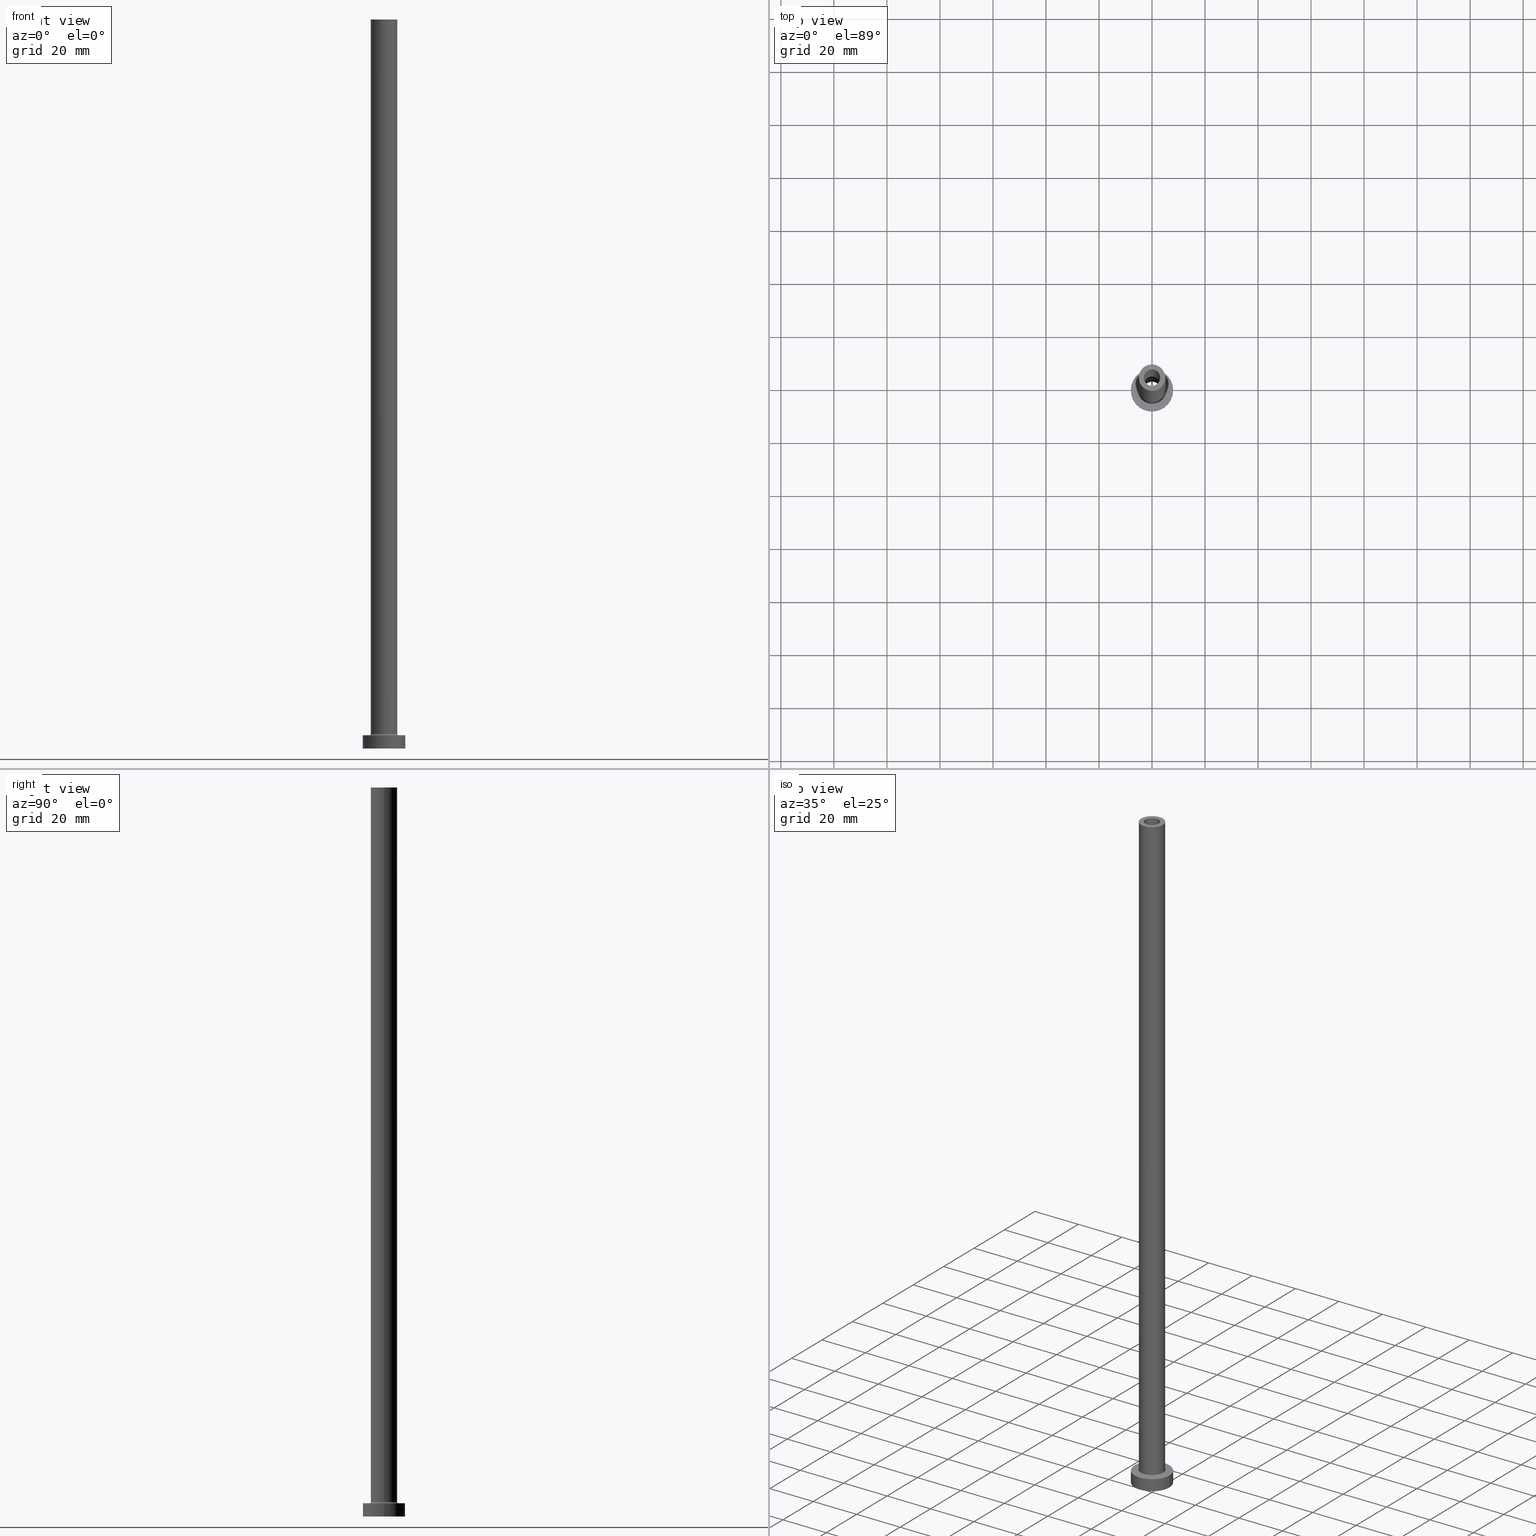
[diagram: canonical four-view strip — front | top / right | iso, engineering-drawing reading convention]
A machine part, canonical four-view strip (front | top / right | iso — engineering-drawing reading convention). The complete STEP part file that produces these views, byte-faithful:
ISO-10303-21;
HEADER;
FILE_DESCRIPTION (( 'STEP AP203' ),
    '1' );
FILE_NAME ('e5fe.STEP',
    '2023-02-13T14:31:15',
    ( '' ),
    ( '' ),
    'SwSTEP 2.0',
    'SolidWorks 2019',
    '' );
FILE_SCHEMA (( 'CONFIG_CONTROL_DESIGN' ));
ENDSEC;

DATA;
#1 = DIRECTION ( 'NONE',  ( 1.000000000000000000, 0.000000000000000000, 0.000000000000000000 ) ) ;
#2 = CARTESIAN_POINT ( 'NONE',  ( 0.000000000000000000, 0.000000000000000000, 0.000000000000000000 ) ) ;
#3 = DIRECTION ( 'NONE',  ( 1.000000000000000000, 0.000000000000000000, 0.000000000000000000 ) ) ;
#4 = EDGE_CURVE ( 'NONE', #212, #388, #419, .T. ) ;
#5 = CALENDAR_DATE ( 2023, 13, 2 ) ;
#6 = AXIS2_PLACEMENT_3D ( 'NONE', #328, #151, #412 ) ;
#7 = AXIS2_PLACEMENT_3D ( 'NONE', #179, #403, #78 ) ;
#8 = CARTESIAN_POINT ( 'NONE',  ( -5.000000000000000000, 0.000000000000000000, 275.0000000000000000 ) ) ;
#9 = EDGE_CURVE ( 'NONE', #382, #62, #428, .T. ) ;
#10 = COORDINATED_UNIVERSAL_TIME_OFFSET ( 1, 0, .AHEAD. ) ;
#11 = ADVANCED_FACE ( 'NONE', ( #353 ), #286, .F. ) ;
#12 = DIRECTION ( 'NONE',  ( 0.000000000000000000, 0.000000000000000000, -1.000000000000000000 ) ) ;
#13 = ORIENTED_EDGE ( 'NONE', *, *, #258, .T. ) ;
#14 = EDGE_CURVE ( 'NONE', #388, #212, #168, .T. ) ;
#15 = CIRCLE ( 'NONE', #255, 5.000000000000000000 ) ;
#16 = CARTESIAN_POINT ( 'NONE',  ( 0.000000000000000000, 0.000000000000000000, 5.000000000000000000 ) ) ;
#17 = PRODUCT_DEFINITION_FORMATION_WITH_SPECIFIED_SOURCE ( 'LIBOVOLN�', '', #238, .NOT_KNOWN. ) ;
#18 = PRODUCT_RELATED_PRODUCT_CATEGORY ( 'detail', '', ( #238 ) ) ;
#19 = ADVANCED_BREP_SHAPE_REPRESENTATION ( 'e5fe', ( #398, #170 ), #241 ) ;
#20 = EDGE_LOOP ( 'NONE', ( #247, #450 ) ) ;
#21 = CARTESIAN_POINT ( 'NONE',  ( 3.100000000000000089, 3.796405077356793932E-16, 275.0000000000000000 ) ) ;
#22 = ORIENTED_EDGE ( 'NONE', *, *, #181, .T. ) ;
#23 = DIRECTION ( 'NONE',  ( 0.000000000000000000, 0.000000000000000000, 1.000000000000000000 ) ) ;
#24 = VECTOR ( 'NONE', #461, 1000.000000000000000 ) ;
#25 = ORIENTED_EDGE ( 'NONE', *, *, #447, .T. ) ;
#26 = AXIS2_PLACEMENT_3D ( 'NONE', #237, #46, #283 ) ;
#27 = DIRECTION ( 'NONE',  ( 1.000000000000000000, 0.000000000000000000, 0.000000000000000000 ) ) ;
#28 = DIRECTION ( 'NONE',  ( 0.000000000000000000, -1.000000000000000000, 0.000000000000000000 ) ) ;
#29 = EDGE_LOOP ( 'NONE', ( #292, #109, #120, #22 ) ) ;
#30 = CARTESIAN_POINT ( 'NONE',  ( 3.100000000000000089, 3.796405077356793932E-16, 230.0000000000000284 ) ) ;
#31 = DIRECTION ( 'NONE',  ( 1.000000000000000000, 0.000000000000000000, 0.000000000000000000 ) ) ;
#32 = ORIENTED_EDGE ( 'NONE', *, *, #225, .T. ) ;
#33 = AXIS2_PLACEMENT_3D ( 'NONE', #111, #48, #79 ) ;
#34 = APPROVAL_DATE_TIME ( #427, #172 ) ;
#35 = ADVANCED_FACE ( 'NONE', ( #322 ), #150, .T. ) ;
#36 = ORIENTED_EDGE ( 'NONE', *, *, #361, .T. ) ;
#37 = CARTESIAN_POINT ( 'NONE',  ( -8.000000000000000000, 0.000000000000000000, 0.000000000000000000 ) ) ;
#38 = CARTESIAN_POINT ( 'NONE',  ( 0.000000000000000000, 0.000000000000000000, 230.0000000000000284 ) ) ;
#39 = LOCAL_TIME ( 15, 31, 15.00000000000000000, #350 ) ;
#40 = CALENDAR_DATE ( 2023, 13, 2 ) ;
#41 = AXIS2_PLACEMENT_3D ( 'NONE', #460, #135, #27 ) ;
#42 = ADVANCED_FACE ( 'NONE', ( #370 ), #440, .F. ) ;
#43 = LOCAL_TIME ( 15, 31, 15.00000000000000000, #73 ) ;
#44 = DIRECTION ( 'NONE',  ( 0.000000000000000000, 0.000000000000000000, 1.000000000000000000 ) ) ;
#45 = EDGE_CURVE ( 'NONE', #196, #211, #404, .T. ) ;
#46 = DIRECTION ( 'NONE',  ( 0.000000000000000000, 0.000000000000000000, 1.000000000000000000 ) ) ;
#47 = EDGE_CURVE ( 'NONE', #388, #64, #175, .T. ) ;
#48 = DIRECTION ( 'NONE',  ( 0.000000000000000000, 0.000000000000000000, 1.000000000000000000 ) ) ;
#49 = CARTESIAN_POINT ( 'NONE',  ( 5.000000000000000000, 6.123233995736766282E-16, 275.0000000000000000 ) ) ;
#50 = ORIENTED_EDGE ( 'NONE', *, *, #373, .F. ) ;
#51 = ORIENTED_EDGE ( 'NONE', *, *, #295, .T. ) ;
#52 = EDGE_LOOP ( 'NONE', ( #157, #50 ) ) ;
#53 = CARTESIAN_POINT ( 'NONE',  ( 0.000000000000000000, 0.000000000000000000, 0.000000000000000000 ) ) ;
#54 = EDGE_LOOP ( 'NONE', ( #376, #254, #339, #307 ) ) ;
#55 = AXIS2_PLACEMENT_3D ( 'NONE', #149, #439, #71 ) ;
#56 = ORIENTED_EDGE ( 'NONE', *, *, #240, .T. ) ;
#57 = DIRECTION ( 'NONE',  ( -1.000000000000000000, 0.000000000000000000, 0.000000000000000000 ) ) ;
#58 = CARTESIAN_POINT ( 'NONE',  ( 0.000000000000000000, 0.000000000000000000, 275.0000000000000000 ) ) ;
#59 = FACE_OUTER_BOUND ( 'NONE', #449, .T. ) ;
#60 = CYLINDRICAL_SURFACE ( 'NONE', #402, 8.000000000000000000 ) ;
#61 = CARTESIAN_POINT ( 'NONE',  ( -3.250000000000000444, 0.000000000000000000, 0.000000000000000000 ) ) ;
#62 = VERTEX_POINT ( 'NONE', #246 ) ;
#63 = AXIS2_PLACEMENT_3D ( 'NONE', #362, #44, #1 ) ;
#64 = VERTEX_POINT ( 'NONE', #408 ) ;
#65 = CIRCLE ( 'NONE', #182, 3.250000000000000444 ) ;
#66 = CC_DESIGN_DATE_AND_TIME_ASSIGNMENT ( #233, #392, ( #311 ) ) ;
#67 = PERSON_AND_ORGANIZATION_ROLE ( 'classification_officer' ) ;
#68 = DIRECTION ( 'NONE',  ( 1.224646799147353207E-16, 1.000000000000000000, -0.000000000000000000 ) ) ;
#69 = DATE_AND_TIME ( #314, #332 ) ;
#70 = TOROIDAL_SURFACE ( 'NONE', #239, 5.500000000000000000, 0.5000000000000000000 ) ;
#71 = DIRECTION ( 'NONE',  ( 1.000000000000000000, 0.000000000000000000, 0.000000000000000000 ) ) ;
#72 = CARTESIAN_POINT ( 'NONE',  ( 0.000000000000000000, 0.000000000000000000, 0.000000000000000000 ) ) ;
#73 = COORDINATED_UNIVERSAL_TIME_OFFSET ( 1, 0, .AHEAD. ) ;
#74 = AXIS2_PLACEMENT_3D ( 'NONE', #76, #185, #329 ) ;
#75 = LOCAL_TIME ( 15, 31, 15.00000000000000000, #394 ) ;
#76 = CARTESIAN_POINT ( 'NONE',  ( 0.000000000000000000, 0.000000000000000000, 230.0000000000000284 ) ) ;
#77 = CC_DESIGN_PERSON_AND_ORGANIZATION_ASSIGNMENT ( #390, #104, ( #17 ) ) ;
#78 = DIRECTION ( 'NONE',  ( -1.000000000000000000, 0.000000000000000000, 0.000000000000000000 ) ) ;
#79 = DIRECTION ( 'NONE',  ( 1.000000000000000000, 0.000000000000000000, 0.000000000000000000 ) ) ;
#80 = CARTESIAN_POINT ( 'NONE',  ( 0.000000000000000000, 0.000000000000000000, 275.0000000000000000 ) ) ;
#81 = ORIENTED_EDGE ( 'NONE', *, *, #169, .T. ) ;
#82 = DIRECTION ( 'NONE',  ( 0.000000000000000000, 0.000000000000000000, -1.000000000000000000 ) ) ;
#83 = EDGE_LOOP ( 'NONE', ( #188, #456, #186, #13 ) ) ;
#84 = ORIENTED_EDGE ( 'NONE', *, *, #169, .F. ) ;
#85 = CARTESIAN_POINT ( 'NONE',  ( -3.250000000000000444, 0.000000000000000000, 230.0000000000000284 ) ) ;
#86 = EDGE_LOOP ( 'NONE', ( #334, #84, #32, #365 ) ) ;
#87 = AXIS2_PLACEMENT_3D ( 'NONE', #444, #178, #244 ) ;
#88 = EDGE_CURVE ( 'NONE', #156, #215, #207, .T. ) ;
#89 = VECTOR ( 'NONE', #324, 1000.000000000000000 ) ;
#90 = ORIENTED_EDGE ( 'NONE', *, *, #107, .T. ) ;
#91 = CARTESIAN_POINT ( 'NONE',  ( 3.250000000000000444, 3.980102097228898231E-16, 0.000000000000000000 ) ) ;
#92 = APPROVAL_PERSON_ORGANIZATION ( #108, #110, #312 ) ;
#93 = DIRECTION ( 'NONE',  ( -1.000000000000000000, 0.000000000000000000, 0.000000000000000000 ) ) ;
#94 = EDGE_LOOP ( 'NONE', ( #118, #154 ) ) ;
#95 = FACE_OUTER_BOUND ( 'NONE', #54, .T. ) ;
#96 = CARTESIAN_POINT ( 'NONE',  ( 0.000000000000000000, 0.000000000000000000, 275.0000000000000000 ) ) ;
#97 = ORIENTED_EDGE ( 'NONE', *, *, #275, .F. ) ;
#98 = DIRECTION ( 'NONE',  ( 1.000000000000000000, 0.000000000000000000, -0.000000000000000000 ) ) ;
#99 = DIRECTION ( 'NONE',  ( 1.000000000000000000, 0.000000000000000000, 0.000000000000000000 ) ) ;
#100 = APPROVAL_STATUS ( 'not_yet_approved' ) ;
#101 = AXIS2_PLACEMENT_3D ( 'NONE', #281, #400, #364 ) ;
#102 = PERSON_AND_ORGANIZATION ( #144, #142 ) ;
#103 =( NAMED_UNIT ( * ) SI_UNIT ( $, .STERADIAN. ) SOLID_ANGLE_UNIT ( ) );
#104 = PERSON_AND_ORGANIZATION_ROLE ( 'creator' ) ;
#105 = CALENDAR_DATE ( 2023, 13, 2 ) ;
#106 = APPROVAL_PERSON_ORGANIZATION ( #102, #363, #138 ) ;
#107 = EDGE_CURVE ( 'NONE', #382, #122, #330, .T. ) ;
#108 = PERSON_AND_ORGANIZATION ( #144, #142 ) ;
#109 = ORIENTED_EDGE ( 'NONE', *, *, #107, .F. ) ;
#110 = APPROVAL ( #399, 'NEUR�EN�' ) ;
#111 = CARTESIAN_POINT ( 'NONE',  ( 0.000000000000000000, 0.000000000000000000, 5.000000000000000000 ) ) ;
#112 = DIRECTION ( 'NONE',  ( -1.000000000000000000, 0.000000000000000000, 0.000000000000000000 ) ) ;
#113 = EDGE_LOOP ( 'NONE', ( #114, #331, #343, #219 ) ) ;
#114 = ORIENTED_EDGE ( 'NONE', *, *, #145, .T. ) ;
#115 = CARTESIAN_POINT ( 'NONE',  ( 8.000000000000000000, 9.797174393178825657E-16, 5.000000000000000000 ) ) ;
#116 = CIRCLE ( 'NONE', #235, 8.000000000000000000 ) ;
#117 = DIRECTION ( 'NONE',  ( -0.000000000000000000, -0.000000000000000000, -1.000000000000000000 ) ) ;
#118 = ORIENTED_EDGE ( 'NONE', *, *, #258, .F. ) ;
#119 = DESIGN_CONTEXT ( 'detailed design', #369, 'design' ) ;
#120 = ORIENTED_EDGE ( 'NONE', *, *, #9, .T. ) ;
#121 = ADVANCED_FACE ( 'NONE', ( #374 ), #70, .F. ) ;
#122 = VERTEX_POINT ( 'NONE', #49 ) ;
#123 = ORIENTED_EDGE ( 'NONE', *, *, #4, .F. ) ;
#124 = DIRECTION ( 'NONE',  ( 0.000000000000000000, 0.000000000000000000, -1.000000000000000000 ) ) ;
#125 = DIRECTION ( 'NONE',  ( -0.000000000000000000, -0.000000000000000000, -1.000000000000000000 ) ) ;
#126 = EDGE_CURVE ( 'NONE', #215, #211, #357, .T. ) ;
#127 = AXIS2_PLACEMENT_3D ( 'NONE', #424, #23, #299 ) ;
#128 = EDGE_LOOP ( 'NONE', ( #176, #159 ) ) ;
#129 = SHAPE_DEFINITION_REPRESENTATION ( #371, #19 ) ;
#130 = CARTESIAN_POINT ( 'NONE',  ( 0.000000000000000000, 0.000000000000000000, 275.0000000000000000 ) ) ;
#131 = EDGE_CURVE ( 'NONE', #122, #287, #152, .T. ) ;
#132 = CARTESIAN_POINT ( 'NONE',  ( 0.000000000000000000, 0.000000000000000000, 5.000000000000000000 ) ) ;
#133 = FACE_BOUND ( 'NONE', #52, .T. ) ;
#134 = CARTESIAN_POINT ( 'NONE',  ( 5.500000000000000000, 0.000000000000000000, 5.000000000000002665 ) ) ;
#135 = DIRECTION ( 'NONE',  ( 0.000000000000000000, 0.000000000000000000, 1.000000000000000000 ) ) ;
#136 = DIRECTION ( 'NONE',  ( 0.000000000000000000, 0.000000000000000000, 1.000000000000000000 ) ) ;
#137 = PERSON_AND_ORGANIZATION ( #144, #142 ) ;
#138 = APPROVAL_ROLE ( '' ) ;
#139 = TOROIDAL_SURFACE ( 'NONE', #55, 5.500000000000000000, 0.5000000000000000000 ) ;
#140 = APPROVAL_DATE_TIME ( #274, #363 ) ;
#141 = AXIS2_PLACEMENT_3D ( 'NONE', #457, #28, #420 ) ;
#142 = ORGANIZATION ( 'NEUR�EN�', 'NEUR�EN�', '' ) ;
#143 = PERSON_AND_ORGANIZATION_ROLE ( 'creator' ) ;
#144 = PERSON ( 'NEUR�EN�', 'NEUR�EN�', 'NEUR�EN�', ('NEUR�EN�'), ('NEUR�EN�'), ('NEUR�EN�') ) ;
#145 = EDGE_CURVE ( 'NONE', #156, #196, #201, .T. ) ;
#146 = CARTESIAN_POINT ( 'NONE',  ( 0.000000000000000000, 0.000000000000000000, 5.500000000000005329 ) ) ;
#147 = VECTOR ( 'NONE', #117, 1000.000000000000000 ) ;
#148 = AXIS2_PLACEMENT_3D ( 'NONE', #426, #423, #162 ) ;
#149 = CARTESIAN_POINT ( 'NONE',  ( 0.000000000000000000, 0.000000000000000000, 5.500000000000005329 ) ) ;
#150 = CYLINDRICAL_SURFACE ( 'NONE', #87, 8.000000000000000000 ) ;
#151 = DIRECTION ( 'NONE',  ( 0.000000000000000000, 0.000000000000000000, -1.000000000000000000 ) ) ;
#152 = LINE ( 'NONE', #291, #147 ) ;
#153 = ORIENTED_EDGE ( 'NONE', *, *, #225, .F. ) ;
#154 = ORIENTED_EDGE ( 'NONE', *, *, #183, .F. ) ;
#155 = CARTESIAN_POINT ( 'NONE',  ( -3.250000000000000444, 0.000000000000000000, 239.1923881554251636 ) ) ;
#156 = VERTEX_POINT ( 'NONE', #253 ) ;
#157 = ORIENTED_EDGE ( 'NONE', *, *, #145, .F. ) ;
#158 = DIRECTION ( 'NONE',  ( 0.000000000000000000, 0.000000000000000000, 1.000000000000000000 ) ) ;
#159 = ORIENTED_EDGE ( 'NONE', *, *, #270, .F. ) ;
#160 = ORIENTED_EDGE ( 'NONE', *, *, #373, .T. ) ;
#161 = CARTESIAN_POINT ( 'NONE',  ( -3.100000000000000089, 0.000000000000000000, 230.0000000000000284 ) ) ;
#162 = DIRECTION ( 'NONE',  ( 1.000000000000000000, 0.000000000000000000, 0.000000000000000000 ) ) ;
#163 = CC_DESIGN_APPROVAL ( #172, ( #445 ) ) ;
#164 = CARTESIAN_POINT ( 'NONE',  ( -8.000000000000000000, 0.000000000000000000, 5.000000000000000000 ) ) ;
#165 = CYLINDRICAL_SURFACE ( 'NONE', #242, 3.100000000000000089 ) ;
#166 = DIRECTION ( 'NONE',  ( 0.000000000000000000, 0.000000000000000000, 1.000000000000000000 ) ) ;
#167 = CARTESIAN_POINT ( 'NONE',  ( -5.500000000000000000, 6.735557395310442023E-16, 5.500000000000005329 ) ) ;
#168 = CIRCLE ( 'NONE', #33, 8.000000000000000000 ) ;
#169 = EDGE_CURVE ( 'NONE', #287, #62, #15, .T. ) ;
#170 = AXIS2_PLACEMENT_3D ( 'NONE', #72, #434, #433 ) ;
#171 = DATE_TIME_ROLE ( 'classification_date' ) ;
#172 = APPROVAL ( #100, 'NEUR�EN�' ) ;
#173 = VECTOR ( 'NONE', #82, 1000.000000000000000 ) ;
#174 = EDGE_LOOP ( 'NONE', ( #36, #304, #190, #446 ) ) ;
#175 = LINE ( 'NONE', #115, #89 ) ;
#176 = ORIENTED_EDGE ( 'NONE', *, *, #361, .F. ) ;
#177 = EDGE_CURVE ( 'NONE', #212, #323, #267, .T. ) ;
#178 = DIRECTION ( 'NONE',  ( -0.000000000000000000, -0.000000000000000000, -1.000000000000000000 ) ) ;
#179 = CARTESIAN_POINT ( 'NONE',  ( 0.000000000000000000, 0.000000000000000000, 275.0000000000000000 ) ) ;
#180 = CIRCLE ( 'NONE', #452, 3.250000000000000444 ) ;
#181 = EDGE_CURVE ( 'NONE', #62, #287, #325, .T. ) ;
#182 = AXIS2_PLACEMENT_3D ( 'NONE', #194, #221, #455 ) ;
#183 = EDGE_CURVE ( 'NONE', #198, #338, #180, .T. ) ;
#184 = DIRECTION ( 'NONE',  ( 0.000000000000000000, 0.000000000000000000, -1.000000000000000000 ) ) ;
#185 = DIRECTION ( 'NONE',  ( 0.000000000000000000, 0.000000000000000000, 1.000000000000000000 ) ) ;
#186 = ORIENTED_EDGE ( 'NONE', *, *, #459, .T. ) ;
#187 = DIRECTION ( 'NONE',  ( 1.000000000000000000, 0.000000000000000000, 0.000000000000000000 ) ) ;
#188 = ORIENTED_EDGE ( 'NONE', *, *, #437, .F. ) ;
#189 = CC_DESIGN_PERSON_AND_ORGANIZATION_ASSIGNMENT ( #280, #143, ( #311 ) ) ;
#190 = ORIENTED_EDGE ( 'NONE', *, *, #183, .T. ) ;
#191 = FACE_OUTER_BOUND ( 'NONE', #174, .T. ) ;
#192 = EDGE_LOOP ( 'NONE', ( #90, #414 ) ) ;
#193 = EDGE_LOOP ( 'NONE', ( #260, #25, #284, #153 ) ) ;
#194 = CARTESIAN_POINT ( 'NONE',  ( 0.000000000000000000, 0.000000000000000000, 0.000000000000000000 ) ) ;
#195 = DIRECTION ( 'NONE',  ( 0.000000000000000000, 0.000000000000000000, 1.000000000000000000 ) ) ;
#196 = VERTEX_POINT ( 'NONE', #341 ) ;
#197 = PLANE ( 'NONE',  #411 ) ;
#198 = VERTEX_POINT ( 'NONE', #91 ) ;
#199 = CIRCLE ( 'NONE', #327, 3.250000000000000444 ) ;
#200 = ORIENTED_EDGE ( 'NONE', *, *, #413, .T. ) ;
#201 = CIRCLE ( 'NONE', #63, 3.100000000000000089 ) ;
#202 = PERSON_AND_ORGANIZATION ( #144, #142 ) ;
#203 = EDGE_CURVE ( 'NONE', #64, #323, #116, .T. ) ;
#204 = MECHANICAL_CONTEXT ( 'NONE', #279, 'mechanical' ) ;
#205 = ADVANCED_FACE ( 'NONE', ( #191 ), #337, .F. ) ;
#206 = CARTESIAN_POINT ( 'NONE',  ( 8.000000000000000000, 9.797174393178825657E-16, 5.000000000000000000 ) ) ;
#207 = LINE ( 'NONE', #367, #173 ) ;
#208 = DIRECTION ( 'NONE',  ( 1.000000000000000000, 0.000000000000000000, 0.000000000000000000 ) ) ;
#209 = ORIENTED_EDGE ( 'NONE', *, *, #131, .T. ) ;
#210 = DIRECTION ( 'NONE',  ( -0.000000000000000000, -0.000000000000000000, -1.000000000000000000 ) ) ;
#211 = VERTEX_POINT ( 'NONE', #30 ) ;
#212 = VERTEX_POINT ( 'NONE', #351 ) ;
#213 = AXIS2_PLACEMENT_3D ( 'NONE', #386, #347, #256 ) ;
#214 = VERTEX_POINT ( 'NONE', #85 ) ;
#215 = VERTEX_POINT ( 'NONE', #161 ) ;
#216 = CC_DESIGN_APPROVAL ( #110, ( #17 ) ) ;
#217 = CARTESIAN_POINT ( 'NONE',  ( 0.000000000000000000, 0.000000000000000000, 239.1923881554251636 ) ) ;
#218 = DIRECTION ( 'NONE',  ( -1.000000000000000000, 0.000000000000000000, 0.000000000000000000 ) ) ;
#219 = ORIENTED_EDGE ( 'NONE', *, *, #88, .F. ) ;
#220 = CALENDAR_DATE ( 2023, 13, 2 ) ;
#221 = DIRECTION ( 'NONE',  ( -0.000000000000000000, -0.000000000000000000, -1.000000000000000000 ) ) ;
#222 = DIRECTION ( 'NONE',  ( -0.000000000000000000, -0.000000000000000000, -1.000000000000000000 ) ) ;
#223 = EDGE_LOOP ( 'NONE', ( #252, #160, #375, #298 ) ) ;
#224 = LINE ( 'NONE', #349, #24 ) ;
#225 = EDGE_CURVE ( 'NONE', #287, #269, #368, .T. ) ;
#226 = FACE_OUTER_BOUND ( 'NONE', #192, .T. ) ;
#227 = CARTESIAN_POINT ( 'NONE',  ( 5.000000000000000000, 6.123233995736766282E-16, 5.500000000000005329 ) ) ;
#228 = ORIENTED_EDGE ( 'NONE', *, *, #14, .T. ) ;
#229 = CIRCLE ( 'NONE', #326, 0.5000000000000004441 ) ;
#230 = ADVANCED_FACE ( 'NONE', ( #133, #226 ), #302, .T. ) ;
#231 = AXIS2_PLACEMENT_3D ( 'NONE', #58, #195, #259 ) ;
#232 = DIRECTION ( 'NONE',  ( 0.000000000000000000, 0.000000000000000000, -1.000000000000000000 ) ) ;
#233 = DATE_AND_TIME ( #40, #75 ) ;
#234 = PERSON_AND_ORGANIZATION ( #144, #142 ) ;
#235 = AXIS2_PLACEMENT_3D ( 'NONE', #53, #383, #448 ) ;
#236 = PERSON_AND_ORGANIZATION ( #144, #142 ) ;
#237 = CARTESIAN_POINT ( 'NONE',  ( 0.000000000000000000, 0.000000000000000000, 275.0000000000000000 ) ) ;
#238 = PRODUCT ( 'e5fe', 'e5fe', '', ( #204 ) ) ;
#239 = AXIS2_PLACEMENT_3D ( 'NONE', #146, #401, #250 ) ;
#240 = EDGE_CURVE ( 'NONE', #269, #297, #385, .T. ) ;
#241 =( GEOMETRIC_REPRESENTATION_CONTEXT ( 3 ) GLOBAL_UNCERTAINTY_ASSIGNED_CONTEXT ( ( #415 ) ) GLOBAL_UNIT_ASSIGNED_CONTEXT ( ( #336, #257, #103 ) ) REPRESENTATION_CONTEXT ( 'NONE', 'WORKASPACE' ) );
#242 = AXIS2_PLACEMENT_3D ( 'NONE', #425, #232, #93 ) ;
#243 = CC_DESIGN_DATE_AND_TIME_ASSIGNMENT ( #69, #171, ( #445 ) ) ;
#244 = DIRECTION ( 'NONE',  ( -1.000000000000000000, 0.000000000000000000, 0.000000000000000000 ) ) ;
#245 = AXIS2_PLACEMENT_3D ( 'NONE', #80, #282, #208 ) ;
#246 = CARTESIAN_POINT ( 'NONE',  ( -5.000000000000000000, 0.000000000000000000, 5.500000000000005329 ) ) ;
#247 = ORIENTED_EDGE ( 'NONE', *, *, #126, .T. ) ;
#248 = DIRECTION ( 'NONE',  ( 1.000000000000000000, 0.000000000000000000, -0.000000000000000000 ) ) ;
#249 = ADVANCED_FACE ( 'NONE', ( #95 ), #60, .T. ) ;
#250 = DIRECTION ( 'NONE',  ( 1.000000000000000000, 0.000000000000000000, 0.000000000000000000 ) ) ;
#251 = EDGE_LOOP ( 'NONE', ( #97, #209, #81, #416 ) ) ;
#252 = ORIENTED_EDGE ( 'NONE', *, *, #45, .F. ) ;
#253 = CARTESIAN_POINT ( 'NONE',  ( -3.100000000000000089, 0.000000000000000000, 275.0000000000000000 ) ) ;
#254 = ORIENTED_EDGE ( 'NONE', *, *, #47, .T. ) ;
#255 = AXIS2_PLACEMENT_3D ( 'NONE', #453, #378, #187 ) ;
#256 = DIRECTION ( 'NONE',  ( 1.000000000000000000, 0.000000000000000000, 0.000000000000000000 ) ) ;
#257 =( NAMED_UNIT ( * ) PLANE_ANGLE_UNIT ( ) SI_UNIT ( $, .RADIAN. ) );
#258 = EDGE_CURVE ( 'NONE', #338, #198, #65, .T. ) ;
#259 = DIRECTION ( 'NONE',  ( 1.000000000000000000, 0.000000000000000000, 0.000000000000000000 ) ) ;
#260 = ORIENTED_EDGE ( 'NONE', *, *, #181, .F. ) ;
#261 = CC_DESIGN_SECURITY_CLASSIFICATION ( #445, ( #17 ) ) ;
#262 = AXIS2_PLACEMENT_3D ( 'NONE', #273, #303, #99 ) ;
#263 = DIRECTION ( 'NONE',  ( -0.000000000000000000, -0.000000000000000000, -1.000000000000000000 ) ) ;
#264 = CARTESIAN_POINT ( 'NONE',  ( -5.500000000000000000, 6.735557395310442023E-16, 5.000000000000002665 ) ) ;
#265 = ADVANCED_FACE ( 'NONE', ( #430, #354 ), #197, .F. ) ;
#266 = EDGE_LOOP ( 'NONE', ( #56, #200 ) ) ;
#267 = LINE ( 'NONE', #164, #319 ) ;
#268 = CARTESIAN_POINT ( 'NONE',  ( 0.000000000000000000, 0.000000000000000000, 230.0000000000000284 ) ) ;
#269 = VERTEX_POINT ( 'NONE', #134 ) ;
#270 = EDGE_CURVE ( 'NONE', #294, #214, #199, .T. ) ;
#271 = DIRECTION ( 'NONE',  ( 1.000000000000000000, 0.000000000000000000, 0.000000000000000000 ) ) ;
#272 = AXIS2_PLACEMENT_3D ( 'NONE', #442, #12, #112 ) ;
#273 = CARTESIAN_POINT ( 'NONE',  ( 0.000000000000000000, 0.000000000000000000, 0.000000000000000000 ) ) ;
#274 = DATE_AND_TIME ( #105, #395 ) ;
#275 = EDGE_CURVE ( 'NONE', #122, #382, #359, .T. ) ;
#276 = AXIS2_PLACEMENT_3D ( 'NONE', #96, #222, #218 ) ;
#277 = PERSON_AND_ORGANIZATION_ROLE ( 'design_owner' ) ;
#278 = DIRECTION ( 'NONE',  ( -0.000000000000000000, -0.000000000000000000, -1.000000000000000000 ) ) ;
#279 = APPLICATION_CONTEXT ( 'configuration controlled 3d designs of mechanical parts and assemblies' ) ;
#280 = PERSON_AND_ORGANIZATION ( #144, #142 ) ;
#281 = CARTESIAN_POINT ( 'NONE',  ( 0.000000000000000000, 0.000000000000000000, 230.0000000000000284 ) ) ;
#282 = DIRECTION ( 'NONE',  ( 0.000000000000000000, 0.000000000000000000, 1.000000000000000000 ) ) ;
#283 = DIRECTION ( 'NONE',  ( 1.000000000000000000, 0.000000000000000000, 0.000000000000000000 ) ) ;
#284 = ORIENTED_EDGE ( 'NONE', *, *, #240, .F. ) ;
#285 = FACE_OUTER_BOUND ( 'NONE', #193, .T. ) ;
#286 = CYLINDRICAL_SURFACE ( 'NONE', #6, 3.250000000000000444 ) ;
#287 = VERTEX_POINT ( 'NONE', #227 ) ;
#288 = APPLICATION_PROTOCOL_DEFINITION ( 'international standard', 'config_control_design', 1994, #279 ) ;
#289 = VECTOR ( 'NONE', #278, 1000.000000000000000 ) ;
#290 = DIRECTION ( 'NONE',  ( -1.000000000000000000, 1.224646799147351482E-16, 0.000000000000000000 ) ) ;
#291 = CARTESIAN_POINT ( 'NONE',  ( 5.000000000000000000, 6.123233995736766282E-16, 275.0000000000000000 ) ) ;
#292 = ORIENTED_EDGE ( 'NONE', *, *, #131, .F. ) ;
#293 = AXIS2_PLACEMENT_3D ( 'NONE', #132, #391, #98 ) ;
#294 = VERTEX_POINT ( 'NONE', #348 ) ;
#295 = EDGE_CURVE ( 'NONE', #323, #64, #335, .T. ) ;
#296 = AXIS2_PLACEMENT_3D ( 'NONE', #2, #136, #248 ) ;
#297 = VERTEX_POINT ( 'NONE', #264 ) ;
#298 = ORIENTED_EDGE ( 'NONE', *, *, #432, .F. ) ;
#299 = DIRECTION ( 'NONE',  ( 1.000000000000000000, 0.000000000000000000, 0.000000000000000000 ) ) ;
#300 = EDGE_LOOP ( 'NONE', ( #418, #123, #321, #51 ) ) ;
#301 = VECTOR ( 'NONE', #184, 1000.000000000000000 ) ;
#302 = PLANE ( 'NONE',  #407 ) ;
#303 = DIRECTION ( 'NONE',  ( 0.000000000000000000, 0.000000000000000000, 1.000000000000000000 ) ) ;
#304 = ORIENTED_EDGE ( 'NONE', *, *, #437, .T. ) ;
#305 = PLANE ( 'NONE',  #293 ) ;
#306 = CARTESIAN_POINT ( 'NONE',  ( 0.000000000000000000, 0.000000000000000000, 0.000000000000000000 ) ) ;
#307 = ORIENTED_EDGE ( 'NONE', *, *, #177, .F. ) ;
#308 = FACE_BOUND ( 'NONE', #266, .T. ) ;
#309 = CYLINDRICAL_SURFACE ( 'NONE', #276, 5.000000000000000000 ) ;
#310 = DIRECTION ( 'NONE',  ( -0.000000000000000000, -0.000000000000000000, -1.000000000000000000 ) ) ;
#311 = PRODUCT_DEFINITION ( 'NEZN�M�', '', #17, #119 ) ;
#312 = APPROVAL_ROLE ( '' ) ;
#313 = CLOSED_SHELL ( 'NONE', ( #42, #205, #406, #333, #249, #35, #435, #346, #397, #230, #121, #11, #265, #318 ) ) ;
#314 = CALENDAR_DATE ( 2023, 13, 2 ) ;
#315 = DATE_AND_TIME ( #5, #43 ) ;
#316 = CIRCLE ( 'NONE', #380, 5.500000000000000000 ) ;
#317 = SECURITY_CLASSIFICATION_LEVEL ( 'unclassified' ) ;
#318 = ADVANCED_FACE ( 'NONE', ( #421 ), #165, .F. ) ;
#319 = VECTOR ( 'NONE', #125, 1000.000000000000000 ) ;
#320 = APPROVAL_STATUS ( 'not_yet_approved' ) ;
#321 = ORIENTED_EDGE ( 'NONE', *, *, #177, .T. ) ;
#322 = FACE_OUTER_BOUND ( 'NONE', #300, .T. ) ;
#323 = VERTEX_POINT ( 'NONE', #37 ) ;
#324 = DIRECTION ( 'NONE',  ( -0.000000000000000000, -0.000000000000000000, -1.000000000000000000 ) ) ;
#325 = CIRCLE ( 'NONE', #127, 5.000000000000000000 ) ;
#326 = AXIS2_PLACEMENT_3D ( 'NONE', #167, #68, #290 ) ;
#327 = AXIS2_PLACEMENT_3D ( 'NONE', #268, #342, #31 ) ;
#328 = CARTESIAN_POINT ( 'NONE',  ( 0.000000000000000000, 0.000000000000000000, 239.1923881554251636 ) ) ;
#329 = DIRECTION ( 'NONE',  ( 1.000000000000000000, 0.000000000000000000, 0.000000000000000000 ) ) ;
#330 = CIRCLE ( 'NONE', #245, 5.000000000000000000 ) ;
#331 = ORIENTED_EDGE ( 'NONE', *, *, #45, .T. ) ;
#332 = LOCAL_TIME ( 15, 31, 15.00000000000000000, #356 ) ;
#333 = ADVANCED_FACE ( 'NONE', ( #389 ), #309, .T. ) ;
#334 = ORIENTED_EDGE ( 'NONE', *, *, #447, .F. ) ;
#335 = CIRCLE ( 'NONE', #262, 8.000000000000000000 ) ;
#336 =( LENGTH_UNIT ( ) NAMED_UNIT ( * ) SI_UNIT ( .MILLI., .METRE. ) );
#337 = CYLINDRICAL_SURFACE ( 'NONE', #345, 3.250000000000000444 ) ;
#338 = VERTEX_POINT ( 'NONE', #61 ) ;
#339 = ORIENTED_EDGE ( 'NONE', *, *, #203, .T. ) ;
#340 = CC_DESIGN_PERSON_AND_ORGANIZATION_ASSIGNMENT ( #202, #67, ( #445 ) ) ;
#341 = CARTESIAN_POINT ( 'NONE',  ( 3.100000000000000089, 3.796405077356793932E-16, 275.0000000000000000 ) ) ;
#342 = DIRECTION ( 'NONE',  ( 0.000000000000000000, 0.000000000000000000, 1.000000000000000000 ) ) ;
#343 = ORIENTED_EDGE ( 'NONE', *, *, #126, .F. ) ;
#344 = APPROVAL_ROLE ( '' ) ;
#345 = AXIS2_PLACEMENT_3D ( 'NONE', #217, #429, #417 ) ;
#346 = ADVANCED_FACE ( 'NONE', ( #387, #384 ), #352, .F. ) ;
#347 = DIRECTION ( 'NONE',  ( -0.000000000000000000, -0.000000000000000000, -1.000000000000000000 ) ) ;
#348 = CARTESIAN_POINT ( 'NONE',  ( 3.250000000000000444, 3.980102097228898231E-16, 230.0000000000000284 ) ) ;
#349 = CARTESIAN_POINT ( 'NONE',  ( 3.250000000000000444, 3.980102097228898231E-16, 239.1923881554251636 ) ) ;
#350 = COORDINATED_UNIVERSAL_TIME_OFFSET ( 1, 0, .AHEAD. ) ;
#351 = CARTESIAN_POINT ( 'NONE',  ( -8.000000000000000000, 0.000000000000000000, 5.000000000000000000 ) ) ;
#352 = PLANE ( 'NONE',  #296 ) ;
#353 = FACE_OUTER_BOUND ( 'NONE', #83, .T. ) ;
#354 = FACE_OUTER_BOUND ( 'NONE', #128, .T. ) ;
#355 = CC_DESIGN_PERSON_AND_ORGANIZATION_ASSIGNMENT ( #236, #277, ( #238 ) ) ;
#356 = COORDINATED_UNIVERSAL_TIME_OFFSET ( 1, 0, .AHEAD. ) ;
#357 = CIRCLE ( 'NONE', #74, 3.100000000000000089 ) ;
#358 = CC_DESIGN_APPROVAL ( #363, ( #311 ) ) ;
#359 = CIRCLE ( 'NONE', #231, 5.000000000000000000 ) ;
#360 = FACE_OUTER_BOUND ( 'NONE', #29, .T. ) ;
#361 = EDGE_CURVE ( 'NONE', #214, #294, #422, .T. ) ;
#362 = CARTESIAN_POINT ( 'NONE',  ( 0.000000000000000000, 0.000000000000000000, 275.0000000000000000 ) ) ;
#363 = APPROVAL ( #320, 'NEUR�EN�' ) ;
#364 = DIRECTION ( 'NONE',  ( 1.000000000000000000, 0.000000000000000000, 0.000000000000000000 ) ) ;
#365 = ORIENTED_EDGE ( 'NONE', *, *, #413, .F. ) ;
#366 = CYLINDRICAL_SURFACE ( 'NONE', #7, 5.000000000000000000 ) ;
#367 = CARTESIAN_POINT ( 'NONE',  ( -3.100000000000000089, 0.000000000000000000, 275.0000000000000000 ) ) ;
#368 = CIRCLE ( 'NONE', #141, 0.5000000000000004441 ) ;
#369 = APPLICATION_CONTEXT ( 'configuration controlled 3d designs of mechanical parts and assemblies' ) ;
#370 = FACE_OUTER_BOUND ( 'NONE', #113, .T. ) ;
#371 = PRODUCT_DEFINITION_SHAPE ( 'NONE', 'NONE',  #311 ) ;
#372 = CIRCLE ( 'NONE', #26, 3.100000000000000089 ) ;
#373 = EDGE_CURVE ( 'NONE', #196, #156, #372, .T. ) ;
#374 = FACE_OUTER_BOUND ( 'NONE', #86, .T. ) ;
#375 = ORIENTED_EDGE ( 'NONE', *, *, #88, .T. ) ;
#376 = ORIENTED_EDGE ( 'NONE', *, *, #14, .F. ) ;
#377 = EDGE_LOOP ( 'NONE', ( #410, #379 ) ) ;
#378 = DIRECTION ( 'NONE',  ( 0.000000000000000000, 0.000000000000000000, 1.000000000000000000 ) ) ;
#379 = ORIENTED_EDGE ( 'NONE', *, *, #203, .F. ) ;
#380 = AXIS2_PLACEMENT_3D ( 'NONE', #16, #310, #3 ) ;
#381 = CARTESIAN_POINT ( 'NONE',  ( 0.000000000000000000, 0.000000000000000000, 5.000000000000000000 ) ) ;
#382 = VERTEX_POINT ( 'NONE', #436 ) ;
#383 = DIRECTION ( 'NONE',  ( 0.000000000000000000, 0.000000000000000000, 1.000000000000000000 ) ) ;
#384 = FACE_OUTER_BOUND ( 'NONE', #377, .T. ) ;
#385 = CIRCLE ( 'NONE', #213, 5.500000000000000000 ) ;
#386 = CARTESIAN_POINT ( 'NONE',  ( 0.000000000000000000, 0.000000000000000000, 5.000000000000000000 ) ) ;
#387 = FACE_BOUND ( 'NONE', #94, .T. ) ;
#388 = VERTEX_POINT ( 'NONE', #206 ) ;
#389 = FACE_OUTER_BOUND ( 'NONE', #251, .T. ) ;
#390 = PERSON_AND_ORGANIZATION ( #144, #142 ) ;
#391 = DIRECTION ( 'NONE',  ( 0.000000000000000000, 0.000000000000000000, 1.000000000000000000 ) ) ;
#392 = DATE_TIME_ROLE ( 'creation_date' ) ;
#393 = PERSON_AND_ORGANIZATION_ROLE ( 'design_supplier' ) ;
#394 = COORDINATED_UNIVERSAL_TIME_OFFSET ( 1, 0, .AHEAD. ) ;
#395 = LOCAL_TIME ( 15, 31, 15.00000000000000000, #10 ) ;
#396 = APPLICATION_PROTOCOL_DEFINITION ( 'international standard', 'config_control_design', 1994, #369 ) ;
#397 = ADVANCED_FACE ( 'NONE', ( #360 ), #366, .T. ) ;
#398 = MANIFOLD_SOLID_BREP ( 'Odebrat vysunut�m4', #313 ) ;
#399 = APPROVAL_STATUS ( 'not_yet_approved' ) ;
#400 = DIRECTION ( 'NONE',  ( 0.000000000000000000, 0.000000000000000000, 1.000000000000000000 ) ) ;
#401 = DIRECTION ( 'NONE',  ( 0.000000000000000000, 0.000000000000000000, 1.000000000000000000 ) ) ;
#402 = AXIS2_PLACEMENT_3D ( 'NONE', #381, #263, #57 ) ;
#403 = DIRECTION ( 'NONE',  ( -0.000000000000000000, -0.000000000000000000, -1.000000000000000000 ) ) ;
#404 = LINE ( 'NONE', #21, #301 ) ;
#405 = ORIENTED_EDGE ( 'NONE', *, *, #4, .T. ) ;
#406 = ADVANCED_FACE ( 'NONE', ( #285 ), #139, .F. ) ;
#407 = AXIS2_PLACEMENT_3D ( 'NONE', #130, #158, #451 ) ;
#408 = CARTESIAN_POINT ( 'NONE',  ( 8.000000000000000000, 9.797174393178825657E-16, 0.000000000000000000 ) ) ;
#409 = APPROVAL_PERSON_ORGANIZATION ( #137, #172, #344 ) ;
#410 = ORIENTED_EDGE ( 'NONE', *, *, #295, .F. ) ;
#411 = AXIS2_PLACEMENT_3D ( 'NONE', #38, #166, #458 ) ;
#412 = DIRECTION ( 'NONE',  ( -1.000000000000000000, 0.000000000000000000, 0.000000000000000000 ) ) ;
#413 = EDGE_CURVE ( 'NONE', #297, #269, #316, .T. ) ;
#414 = ORIENTED_EDGE ( 'NONE', *, *, #275, .T. ) ;
#415 = UNCERTAINTY_MEASURE_WITH_UNIT (LENGTH_MEASURE( 1.000000000000000082E-05 ), #336, 'distance_accuracy_value', 'NONE');
#416 = ORIENTED_EDGE ( 'NONE', *, *, #9, .F. ) ;
#417 = DIRECTION ( 'NONE',  ( -1.000000000000000000, 0.000000000000000000, 0.000000000000000000 ) ) ;
#418 = ORIENTED_EDGE ( 'NONE', *, *, #47, .F. ) ;
#419 = CIRCLE ( 'NONE', #41, 8.000000000000000000 ) ;
#420 = DIRECTION ( 'NONE',  ( 0.000000000000000000, 0.000000000000000000, -1.000000000000000000 ) ) ;
#421 = FACE_OUTER_BOUND ( 'NONE', #223, .T. ) ;
#422 = CIRCLE ( 'NONE', #101, 3.250000000000000444 ) ;
#423 = DIRECTION ( 'NONE',  ( 0.000000000000000000, 0.000000000000000000, 1.000000000000000000 ) ) ;
#424 = CARTESIAN_POINT ( 'NONE',  ( 0.000000000000000000, 0.000000000000000000, 5.500000000000005329 ) ) ;
#425 = CARTESIAN_POINT ( 'NONE',  ( 0.000000000000000000, 0.000000000000000000, 275.0000000000000000 ) ) ;
#426 = CARTESIAN_POINT ( 'NONE',  ( 0.000000000000000000, 0.000000000000000000, 230.0000000000000284 ) ) ;
#427 = DATE_AND_TIME ( #220, #39 ) ;
#428 = LINE ( 'NONE', #8, #289 ) ;
#429 = DIRECTION ( 'NONE',  ( 0.000000000000000000, 0.000000000000000000, -1.000000000000000000 ) ) ;
#430 = FACE_BOUND ( 'NONE', #20, .T. ) ;
#431 = APPROVAL_DATE_TIME ( #315, #110 ) ;
#432 = EDGE_CURVE ( 'NONE', #211, #215, #438, .T. ) ;
#433 = DIRECTION ( 'NONE',  ( 1.000000000000000000, 0.000000000000000000, 0.000000000000000000 ) ) ;
#434 = DIRECTION ( 'NONE',  ( 0.000000000000000000, 0.000000000000000000, 1.000000000000000000 ) ) ;
#435 = ADVANCED_FACE ( 'NONE', ( #308, #59 ), #305, .T. ) ;
#436 = CARTESIAN_POINT ( 'NONE',  ( -5.000000000000000000, 0.000000000000000000, 275.0000000000000000 ) ) ;
#437 = EDGE_CURVE ( 'NONE', #294, #198, #224, .T. ) ;
#438 = CIRCLE ( 'NONE', #148, 3.100000000000000089 ) ;
#439 = DIRECTION ( 'NONE',  ( 0.000000000000000000, 0.000000000000000000, 1.000000000000000000 ) ) ;
#440 = CYLINDRICAL_SURFACE ( 'NONE', #272, 3.100000000000000089 ) ;
#441 = CC_DESIGN_PERSON_AND_ORGANIZATION_ASSIGNMENT ( #234, #393, ( #17 ) ) ;
#442 = CARTESIAN_POINT ( 'NONE',  ( 0.000000000000000000, 0.000000000000000000, 275.0000000000000000 ) ) ;
#443 = LINE ( 'NONE', #155, #454 ) ;
#444 = CARTESIAN_POINT ( 'NONE',  ( 0.000000000000000000, 0.000000000000000000, 5.000000000000000000 ) ) ;
#445 = SECURITY_CLASSIFICATION ( '', '', #317 ) ;
#446 = ORIENTED_EDGE ( 'NONE', *, *, #459, .F. ) ;
#447 = EDGE_CURVE ( 'NONE', #62, #297, #229, .T. ) ;
#448 = DIRECTION ( 'NONE',  ( 1.000000000000000000, 0.000000000000000000, 0.000000000000000000 ) ) ;
#449 = EDGE_LOOP ( 'NONE', ( #405, #228 ) ) ;
#450 = ORIENTED_EDGE ( 'NONE', *, *, #432, .T. ) ;
#451 = DIRECTION ( 'NONE',  ( 1.000000000000000000, 0.000000000000000000, -0.000000000000000000 ) ) ;
#452 = AXIS2_PLACEMENT_3D ( 'NONE', #306, #210, #271 ) ;
#453 = CARTESIAN_POINT ( 'NONE',  ( 0.000000000000000000, 0.000000000000000000, 5.500000000000005329 ) ) ;
#454 = VECTOR ( 'NONE', #124, 1000.000000000000000 ) ;
#455 = DIRECTION ( 'NONE',  ( 1.000000000000000000, 0.000000000000000000, 0.000000000000000000 ) ) ;
#456 = ORIENTED_EDGE ( 'NONE', *, *, #270, .T. ) ;
#457 = CARTESIAN_POINT ( 'NONE',  ( 5.500000000000000000, 0.000000000000000000, 5.500000000000005329 ) ) ;
#458 = DIRECTION ( 'NONE',  ( 1.000000000000000000, 0.000000000000000000, -0.000000000000000000 ) ) ;
#459 = EDGE_CURVE ( 'NONE', #214, #338, #443, .T. ) ;
#460 = CARTESIAN_POINT ( 'NONE',  ( 0.000000000000000000, 0.000000000000000000, 5.000000000000000000 ) ) ;
#461 = DIRECTION ( 'NONE',  ( 0.000000000000000000, 0.000000000000000000, -1.000000000000000000 ) ) ;
ENDSEC;
END-ISO-10303-21;
